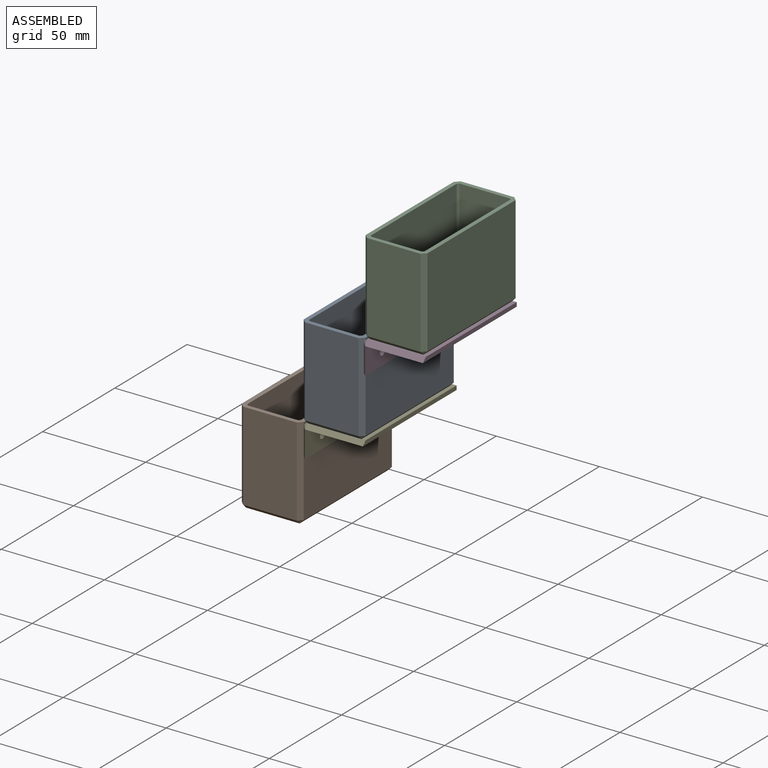
[diagram: assembled view]
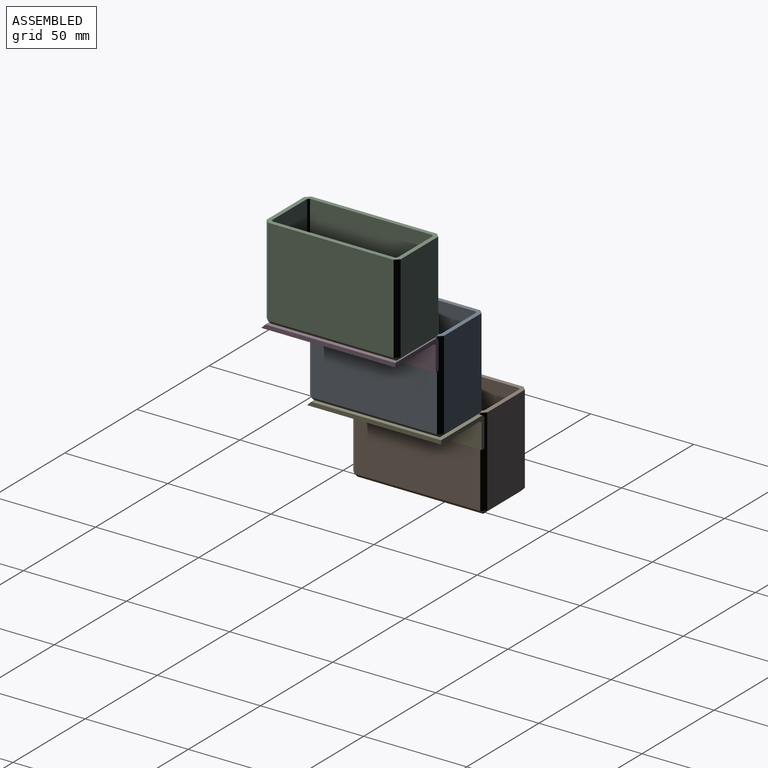
[diagram: assembled view, second angle]
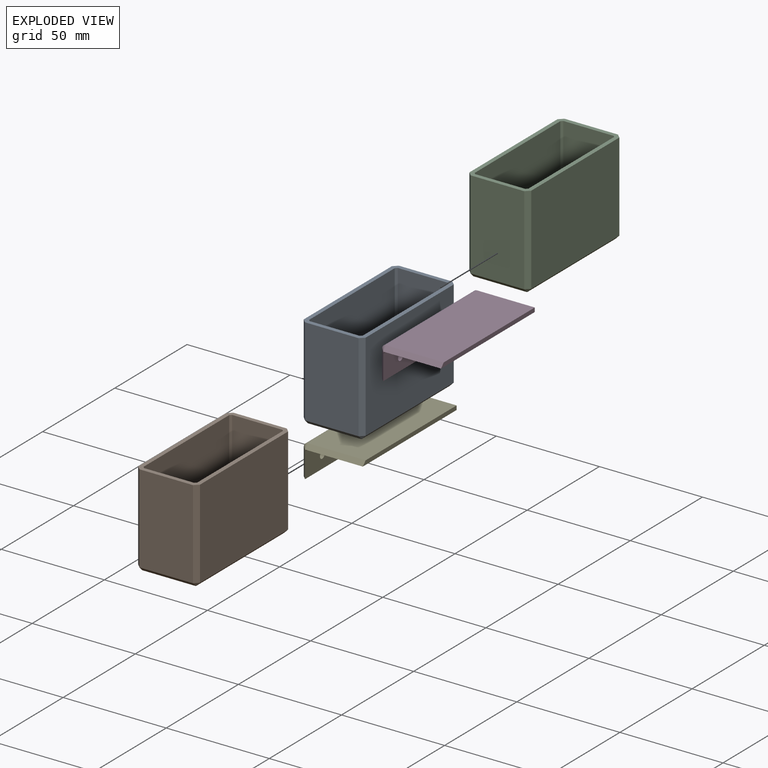
[diagram: exploded view]
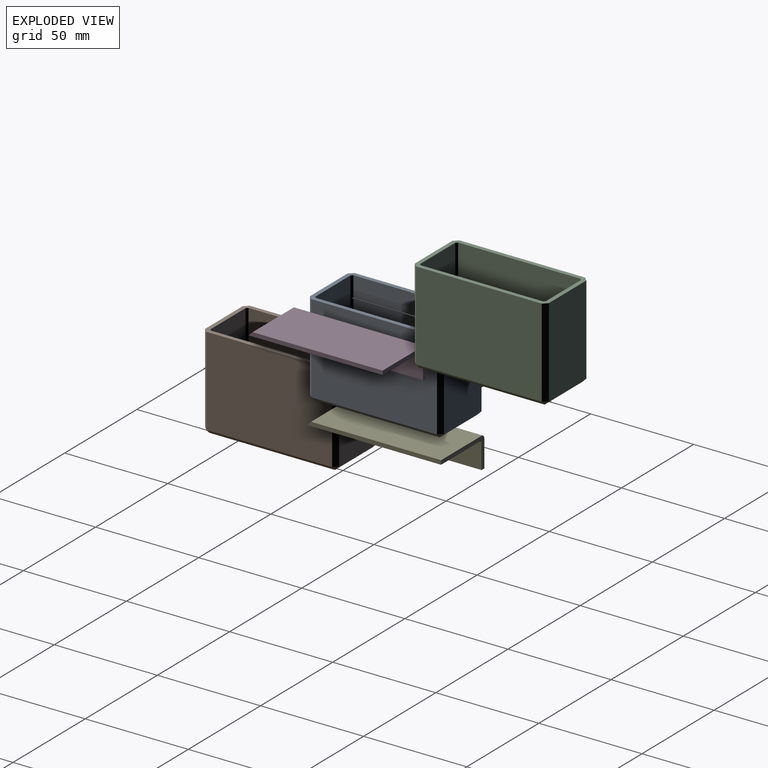
[diagram: exploded view, second angle]
ASSEMBLY  parts=5 mates=11
PART A: 35 faces, bbox 30x65x45 mm
  f0: plane 65x30mm, normal (0,0,1), area 357.4mm2, adj f1,f2,f3,f4,f6,f7,f12,f13
  f1: plane 43x26mm, normal (0,1,0), area 1118mm2, adj f0,f6,f7,f8
  f2: plane 61x43mm, normal (-1,0,0), area 2623mm2, adj f0,f6,f11,f12
  f3: plane 43x26mm, normal (0,-1,0), area 1118mm2, adj f0,f12,f13,f17
  f4: plane 61x43mm, normal (1,0,0), area 2623mm2, adj f0,f7,f13,f14
  f5: plane 61x26mm, normal (0,0,-1), area 1586mm2, adj f8,f11,f14,f17
  f6: plane 43x2mm, normal (-0.71,0.71,0), area 121.6mm2, adj f0,f1,f2,f9
  f7: plane 43x2mm, normal (0.71,0.71,0), area 121.6mm2, adj f0,f1,f4,f10
  f8: plane 26x2mm, normal (0,0.71,-0.71), area 73.5mm2, adj f1,f5,f9,f10
  f9: plane 2x2mm, normal (-0.58,0.58,-0.58), area 3.5mm2, adj f6,f8,f11
  f10: plane 2x2mm, normal (0.58,0.58,-0.58), area 3.5mm2, adj f7,f8,f14
  f11: plane 61x2mm, normal (-0.71,0,-0.71), area 172.5mm2, adj f2,f5,f9,f15
  f12: plane 43x2mm, normal (-0.71,-0.71,0), area 121.6mm2, adj f0,f2,f3,f15
  f13: plane 43x2mm, normal (0.71,-0.71,0), area 121.6mm2, adj f0,f3,f4,f16
  f14: plane 61x2mm, normal (0.71,0,-0.71), area 172.5mm2, adj f4,f5,f10,f16
  f15: plane 2x2mm, normal (-0.58,-0.58,-0.58), area 3.5mm2, adj f11,f12,f17
  f16: plane 2x2mm, normal (0.58,-0.58,-0.58), area 3.5mm2, adj f13,f14,f17
  f17: plane 26x2mm, normal (0,-0.71,-0.71), area 73.5mm2, adj f3,f5,f15,f16
  f18: plane 42.17x24.34mm, normal (0,-1,0), area 1026.6mm2, adj f0,f23,f24,f25
  f19: plane 59.34x42.17mm, normal (1,0,0), area 2502.6mm2, adj f0,f23,f28,f29
  f20: plane 42.17x24.34mm, normal (0,1,0), area 1026.6mm2, adj f0,f29,f30,f34
  f21: plane 59.34x42.17mm, normal (-1,0,0), area 2502.6mm2, adj f0,f24,f30,f31
  f22: plane 59.34x24.34mm, normal (0,0,1), area 1444.6mm2, adj f25,f28,f31,f34
  f23: plane 42.36x0.83mm, normal (0.71,-0.71,0), area 49.6mm2, adj f0,f18,f19,f25,f26,f28
  f24: plane 42.36x0.83mm, normal (-0.71,-0.71,0), area 49.6mm2, adj f0,f18,f21,f25,f27,f31
  f25: plane 24.73x0.83mm, normal (0,-0.71,0.71), area 28.9mm2, adj f18,f22,f23,f24,f26,f27,f28,f31
  f26: plane 0.44x0.44mm, normal (0.58,-0.58,0.58), area 0.2mm2, adj f23,f25,f28
  f27: plane 0.44x0.44mm, normal (-0.58,-0.58,0.58), area 0.2mm2, adj f24,f25,f31
  f28: plane 59.73x0.83mm, normal (0.71,0,0.71), area 69.9mm2, adj f19,f22,f23,f25,f26,f29,f32,f34
  f29: plane 42.36x0.83mm, normal (0.71,0.71,0), area 49.6mm2, adj f0,f19,f20,f28,f32,f34
  f30: plane 42.36x0.83mm, normal (-0.71,0.71,0), area 49.6mm2, adj f0,f20,f21,f31,f33,f34
  f31: plane 59.73x0.83mm, normal (-0.71,0,0.71), area 69.9mm2, adj f21,f22,f24,f25,f27,f30,f33,f34
  f32: plane 0.44x0.44mm, normal (0.58,0.58,0.58), area 0.2mm2, adj f28,f29,f34
  f33: plane 0.44x0.44mm, normal (-0.58,0.58,0.58), area 0.2mm2, adj f30,f31,f34
  f34: plane 24.73x0.83mm, normal (0,0.71,0.71), area 28.9mm2, adj f20,f22,f28,f29,f30,f31,f32,f33
PART B: same geometry as A
PART C: same geometry as A
PART D: 15 faces, bbox 30x65x15 mm
  f0: plane 63x13mm, normal (-1,0,0), area 802.9mm2, adj f3,f4,f9,f10,f13,f14
  f1: plane 65x12mm, normal (1,0,0), area 763.9mm2, adj f4,f5,f9,f10,f13,f14
  f2: plane 63x28mm, normal (0,0,1), area 1764mm2, adj f3,f7,f9,f12
  f3: cylinder r=2mm len=63mm, axis (0,1,0), area 197.9mm2, adj f0,f2,f9,f11
  f4: plane 65x2mm, normal (0,0,-1), area 128mm2, adj f0,f1,f9,f10
  f5: cylinder r=1mm len=65mm, axis (0,1,0), area 102.1mm2, adj f1,f6,f8,f9
  f6: plane 65x27mm, normal (0,0,-1), area 1755mm2, adj f5,f7,f9,f12
  f7: plane 65x2mm, normal (1,0,0), area 128mm2, adj f2,f6,f9,f12
  f8: plane 1x1mm, normal (0,-1,0), area 0.2mm2, adj f5,f10,f12
  f9: plane 30x15mm, normal (0,1,0), area 85.4mm2, adj f0,f1,f2,f3,f4,f5,f6,f7
  f10: plane 13x2mm, normal (-0.71,-0.71,0), area 36.8mm2, adj f0,f1,f4,f8,f11
  f11: cone r=2mm half-angle=45deg, axis (0,1,0), area 4.4mm2, adj f3,f10,f12
  f12: plane 28x2mm, normal (0,-0.71,0.71), area 79.2mm2, adj f2,f6,f7,f8,f11
  f13: cylinder r=1.6mm len=3.2mm, axis (1,0,0), area 20.1mm2, adj f0,f1
  f14: cylinder r=1.6mm len=3.2mm, axis (1,0,0), area 20.1mm2, adj f0,f1
PART E: same geometry as D
PLACE A t=(24.26,12.58,-43.41)mm
PLACE B t=(-5.74,12.58,-88.41)mm
PLACE C t=(54.26,12.58,1.59)mm
PLACE D t=(56.12,43.86,-0.03)mm
PLACE E t=(26.12,45.08,-45.03)mm
MATE planar B.f0 <-> E.f2  axis (0,0,1) through (-5.74,12.58,-43.41)mm
MATE planar B.f3 <-> A.f3  axis (0,-1,0) through (-5.74,-19.92,-64.91)mm
MATE planar A.f5 <-> E.f2  axis (0,0,-1) through (24.26,12.58,-43.41)mm
MATE planar A.f1 <-> B.f1  axis (0,1,0) through (24.26,45.08,-19.91)mm
MATE planar A.f4 <-> E.f7  axis (1,0,0) through (39.26,12.58,-41.41)mm
MATE planar C.f3 <-> A.f3  axis (0,-1,0) through (54.26,-19.92,25.09)mm
MATE planar B.f4 <-> E.f0  axis (1,0,0) through (9.26,12.58,-64.91)mm
MATE planar C.f4 <-> D.f7  axis (1,0,0) through (69.26,12.58,25.09)mm
MATE planar D.f0 <-> A.f4  axis (-1,0,0) through (39.26,12.38,-6.9)mm
MATE planar A.f0 <-> D.f2  axis (0,0,1) through (24.26,12.58,1.59)mm
MATE planar C.f5 <-> D.f2  axis (0,0,-1) through (54.26,12.58,1.59)mm
